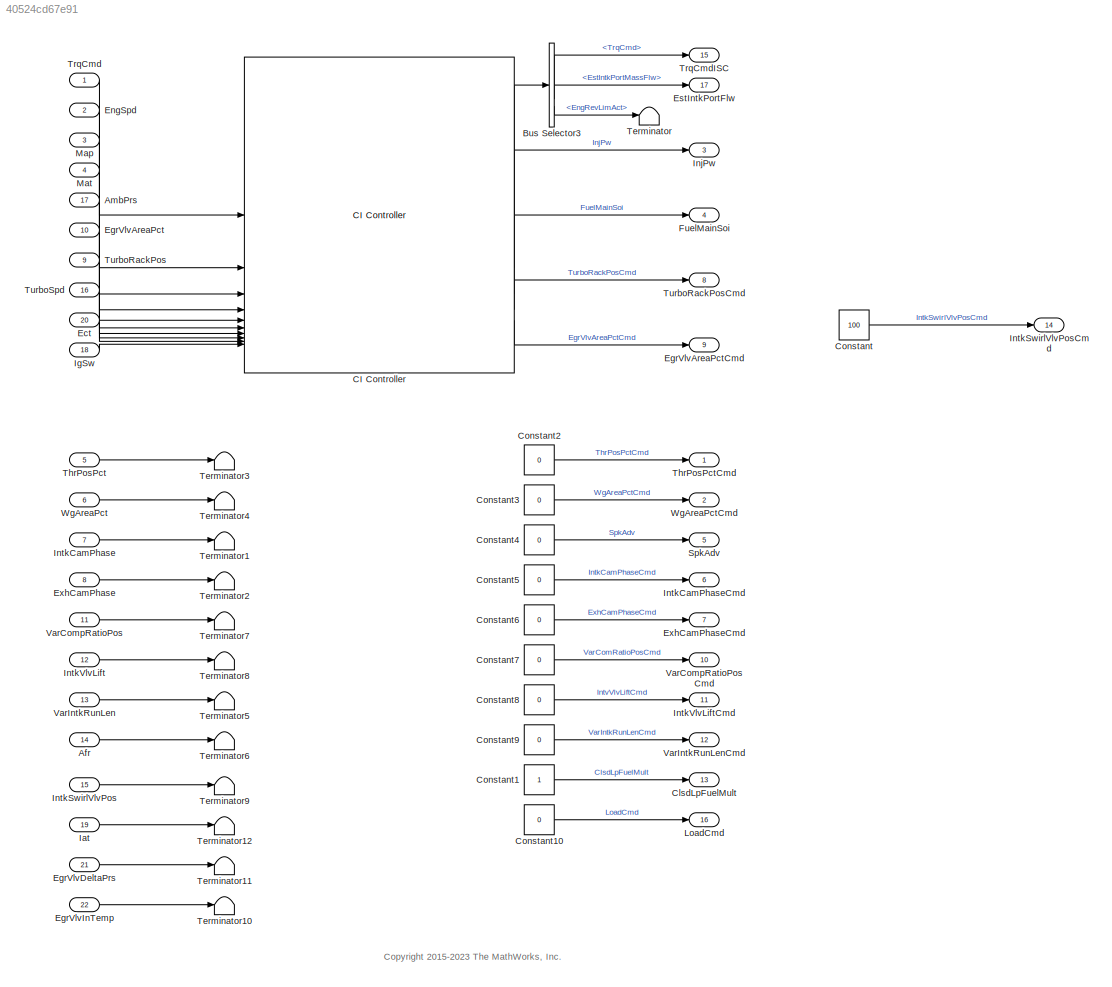
MODEL slx_40524cd67e91
KIND model
BLOCK [Inport] Afr
  OutDataTypeStr = double
  Port = 14
  PortDimensions = 1
  Unit = 1
BLOCK [Inport] AmbPrs
  OutDataTypeStr = double
  Port = 17
  PortDimensions = 1
  Unit = Pa
BLOCK [BusSelector] Bus Selector3
  OutputSignals = TrqCmd,EstIntkPortMassFlw,EngRevLimAct
BLOCK [Reference] CI Controller  REF=autolibengctrlr/CI Controller
  SourceBlock = autolibengctrlr/CI Controller
  SourceType = CI Controller
BLOCK [Outport] ClsdLpFuelMult
  OutDataTypeStr = double
  Port = 13
  PortDimensions = 1
  Unit = 1
  VectorParamsAs1DForOutWhenUnconnected = off
BLOCK [Constant] Constant
  SampleTime = -1
  Value = 100
BLOCK [Constant] Constant1
  SampleTime = -1
BLOCK [Constant] Constant10
  SampleTime = -1
  Value = 0
BLOCK [Constant] Constant2
  SampleTime = -1
  Value = 0
BLOCK [Constant] Constant3
  SampleTime = -1
  Value = 0
BLOCK [Constant] Constant4
  SampleTime = -1
  Value = 0
BLOCK [Constant] Constant5
  SampleTime = -1
  Value = 0
BLOCK [Constant] Constant6
  SampleTime = -1
  Value = 0
BLOCK [Constant] Constant7
  SampleTime = -1
  Value = 0
BLOCK [Constant] Constant8
  SampleTime = -1
  Value = 0
BLOCK [Constant] Constant9
  SampleTime = -1
  Value = 0
BLOCK [Inport] Ect
  OutDataTypeStr = double
  Port = 20
  PortDimensions = 1
  Unit = K
BLOCK [Inport] EgrVlvAreaPct
  OutDataTypeStr = double
  Port = 10
  PortDimensions = 1
  Unit = %
BLOCK [Outport] EgrVlvAreaPctCmd
  OutDataTypeStr = double
  Port = 9
  PortDimensions = 1
  Unit = %
  VectorParamsAs1DForOutWhenUnconnected = off
BLOCK [Inport] EgrVlvDeltaPrs
  OutDataTypeStr = double
  Port = 21
  PortDimensions = 1
  Unit = Pa
BLOCK [Inport] EgrVlvInTemp
  OutDataTypeStr = double
  Port = 22
  PortDimensions = 1
  Unit = K
BLOCK [Inport] EngSpd
  OutDataTypeStr = double
  Port = 2
  PortDimensions = 1
  Unit = rpm
BLOCK [Outport] EstIntkPortFlw
  OutDataTypeStr = double
  Port = 17
  PortDimensions = 1
  Unit = kg/s
  VectorParamsAs1DForOutWhenUnconnected = off
BLOCK [Inport] ExhCamPhase
  OutDataTypeStr = double
  Port = 8
  PortDimensions = 1
  Unit = deg
BLOCK [Outport] ExhCamPhaseCmd
  OutDataTypeStr = double
  Port = 7
  PortDimensions = 1
  Unit = deg
  VectorParamsAs1DForOutWhenUnconnected = off
BLOCK [Outport] FuelMainSoi
  OutDataTypeStr = double
  Port = 4
  PortDimensions = 1
  Unit = deg
  VectorParamsAs1DForOutWhenUnconnected = off
BLOCK [Inport] Iat
  OutDataTypeStr = double
  Port = 19
  PortDimensions = 1
  Unit = K
BLOCK [Inport] IgSw
  OutDataTypeStr = boolean
  Port = 18
  PortDimensions = 1
BLOCK [Outport] InjPw
  OutDataTypeStr = double
  Port = 3
  PortDimensions = 1
  Unit = ms
  VectorParamsAs1DForOutWhenUnconnected = off
BLOCK [Inport] IntkCamPhase
  OutDataTypeStr = double
  Port = 7
  PortDimensions = 1
  Unit = deg
BLOCK [Outport] IntkCamPhaseCmd
  OutDataTypeStr = double
  Port = 6
  PortDimensions = 1
  Unit = deg
  VectorParamsAs1DForOutWhenUnconnected = off
BLOCK [Inport] IntkSwirlVlvPos
  OutDataTypeStr = double
  Port = 15
  PortDimensions = 1
BLOCK [Outport] IntkSwirlVlvPosCmd
  OutDataTypeStr = double
  Port = 14
  PortDimensions = 1
  VectorParamsAs1DForOutWhenUnconnected = off
BLOCK [Inport] IntkVlvLift
  OutDataTypeStr = double
  Port = 12
  PortDimensions = 1
BLOCK [Outport] IntkVlvLiftCmd
  OutDataTypeStr = double
  Port = 11
  PortDimensions = 1
  VectorParamsAs1DForOutWhenUnconnected = off
BLOCK [Outport] LoadCmd
  OutDataTypeStr = double
  Port = 16
  PortDimensions = 1
  Unit = 1
  VectorParamsAs1DForOutWhenUnconnected = off
BLOCK [Inport] Map
  OutDataTypeStr = double
  Port = 3
  PortDimensions = 1
  Unit = Pa
BLOCK [Inport] Mat
  OutDataTypeStr = double
  Port = 4
  PortDimensions = 1
  Unit = K
BLOCK [Outport] SpkAdv
  OutDataTypeStr = double
  Port = 5
  PortDimensions = 1
  Unit = deg
  VectorParamsAs1DForOutWhenUnconnected = off
BLOCK [Terminator] Terminator
BLOCK [Terminator] Terminator1
BLOCK [Terminator] Terminator10
BLOCK [Terminator] Terminator11
BLOCK [Terminator] Terminator12
BLOCK [Terminator] Terminator2
BLOCK [Terminator] Terminator3
BLOCK [Terminator] Terminator4
BLOCK [Terminator] Terminator5
BLOCK [Terminator] Terminator6
BLOCK [Terminator] Terminator7
BLOCK [Terminator] Terminator8
BLOCK [Terminator] Terminator9
BLOCK [Inport] ThrPosPct
  OutDataTypeStr = double
  Port = 5
  PortDimensions = 1
  Unit = %
BLOCK [Outport] ThrPosPctCmd
  OutDataTypeStr = double
  PortDimensions = 1
  Unit = %
  VectorParamsAs1DForOutWhenUnconnected = off
BLOCK [Inport] TrqCmd
  OutDataTypeStr = double
  PortDimensions = 1
  Unit = N*m
BLOCK [Outport] TrqCmdISC
  OutDataTypeStr = double
  Port = 15
  PortDimensions = 1
  Unit = N*m
  VectorParamsAs1DForOutWhenUnconnected = off
BLOCK [Inport] TurboRackPos
  OutDataTypeStr = double
  Port = 9
  PortDimensions = 1
  Unit = 1
BLOCK [Outport] TurboRackPosCmd
  OutDataTypeStr = double
  Port = 8
  PortDimensions = 1
  Unit = 1
  VectorParamsAs1DForOutWhenUnconnected = off
BLOCK [Inport] TurboSpd
  OutDataTypeStr = double
  Port = 16
  PortDimensions = 1
  Unit = rpm
BLOCK [Inport] VarCompRatioPos
  OutDataTypeStr = double
  Port = 11
  PortDimensions = 1
BLOCK [Outport] VarCompRatioPosCmd
  OutDataTypeStr = double
  Port = 10
  PortDimensions = 1
  VectorParamsAs1DForOutWhenUnconnected = off
BLOCK [Inport] VarIntkRunLen
  OutDataTypeStr = double
  Port = 13
  PortDimensions = 1
BLOCK [Outport] VarIntkRunLenCmd
  OutDataTypeStr = double
  Port = 12
  PortDimensions = 1
  VectorParamsAs1DForOutWhenUnconnected = off
BLOCK [Inport] WgAreaPct
  OutDataTypeStr = double
  Port = 6
  PortDimensions = 1
  Unit = %
BLOCK [Outport] WgAreaPctCmd
  OutDataTypeStr = double
  Port = 2
  PortDimensions = 1
  Unit = %
  VectorParamsAs1DForOutWhenUnconnected = off
ANNOTATION (root): <copyright redacted>
LINE Afr:1 -> Terminator6:1
LINE AmbPrs:1 -> CI Controller:5
LINE Bus Selector3:1 -> TrqCmdISC:1
LINE Bus Selector3:2 -> EstIntkPortFlw:1
LINE Bus Selector3:3 -> Terminator:1
LINE CI Controller:1 -> Bus Selector3:1
LINE CI Controller:2 -> InjPw:1
LINE CI Controller:3 -> FuelMainSoi:1
LINE CI Controller:4 -> TurboRackPosCmd:1
LINE CI Controller:5 -> EgrVlvAreaPctCmd:1
LINE Constant10:1 -> LoadCmd:1
LINE Constant1:1 -> ClsdLpFuelMult:1
LINE Constant2:1 -> ThrPosPctCmd:1
LINE Constant3:1 -> WgAreaPctCmd:1
LINE Constant4:1 -> SpkAdv:1
LINE Constant5:1 -> IntkCamPhaseCmd:1
LINE Constant6:1 -> ExhCamPhaseCmd:1
LINE Constant7:1 -> VarCompRatioPosCmd:1
LINE Constant8:1 -> IntkVlvLiftCmd:1
LINE Constant9:1 -> VarIntkRunLenCmd:1
LINE Constant:1 -> IntkSwirlVlvPosCmd:1
LINE Ect:1 -> CI Controller:9
LINE EgrVlvAreaPct:1 -> CI Controller:6
LINE EgrVlvDeltaPrs:1 -> Terminator11:1
LINE EgrVlvInTemp:1 -> Terminator10:1
LINE EngSpd:1 -> CI Controller:2
LINE ExhCamPhase:1 -> Terminator2:1
LINE Iat:1 -> Terminator12:1
LINE IgSw:1 -> CI Controller:10
LINE IntkCamPhase:1 -> Terminator1:1
LINE IntkSwirlVlvPos:1 -> Terminator9:1
LINE IntkVlvLift:1 -> Terminator8:1
LINE Map:1 -> CI Controller:3
LINE Mat:1 -> CI Controller:4
LINE ThrPosPct:1 -> Terminator3:1
LINE TrqCmd:1 -> CI Controller:1
LINE TurboRackPos:1 -> CI Controller:7
LINE TurboSpd:1 -> CI Controller:8
LINE VarCompRatioPos:1 -> Terminator7:1
LINE VarIntkRunLen:1 -> Terminator5:1
LINE WgAreaPct:1 -> Terminator4:1
